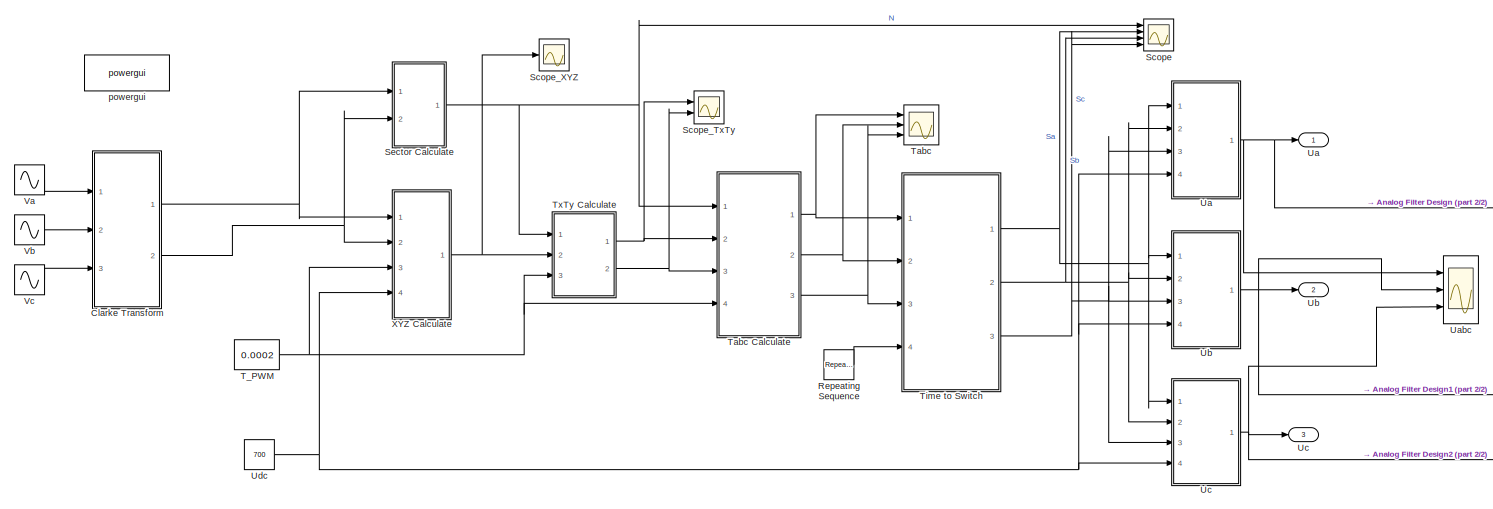
[diagram: root canvas - part 1/2, most of the canvas]
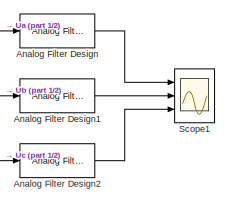
[diagram: root canvas - part 2/2, bottom right region]
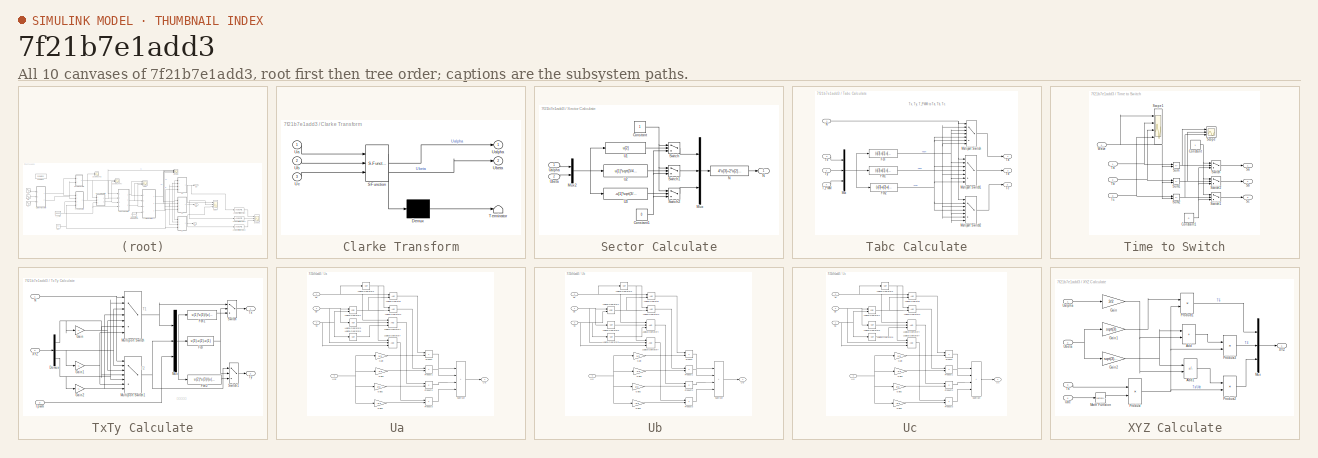
[diagram: thumbnail index - all 10 canvases of the model, root first then tree order]
MODEL slx_7f21b7e1add3
KIND model
CONFIG AbsTol = auto
CONFIG EnableMultiTasking = on
CONFIG FixedStep = 10e-6
CONFIG InitFcn = f = 50;
CONFIG MaxStep = 0.00001
CONFIG MinStep = auto
CONFIG RelTol = 1e-3
CONFIG SampleTimeConstraint = Unconstrained
CONFIG Solver = VariableStepAuto
CONFIG SolverName = VariableStepAuto
CONFIG StartTime = 0.0
CONFIG StopTime = 0.05
BLOCK [Reference] Analog Filter Design  REF=dsparch4/Analog
Filter Design
  Ports = [1, 1]
  SourceBlock = dsparch4/Analog\nFilter Design
  SourceProductBaseCode = DS
  SourceType = Analog Filter Design
BLOCK [Reference] Analog Filter Design1  REF=dsparch4/Analog
Filter Design
  Ports = [1, 1]
  SourceBlock = dsparch4/Analog\nFilter Design
  SourceProductBaseCode = DS
  SourceType = Analog Filter Design
BLOCK [Reference] Analog Filter Design2  REF=dsparch4/Analog
Filter Design
  Ports = [1, 1]
  SourceBlock = dsparch4/Analog\nFilter Design
  SourceProductBaseCode = DS
  SourceType = Analog Filter Design
BLOCK [SubSystem] Clarke Transform
  ErrorFcn = Stateflow.Translate.translate
  PermitHierarchicalResolution = ExplicitOnly
  Ports = [3, 2]
  RequestExecContextInheritance = off
  SFBlockType = MATLAB Function
  TreatAsAtomicUnit = on
BLOCK [Demux] Clarke Transform/ Demux 
  Outputs = 1
  Ports = [1, 1]
BLOCK [S-Function] Clarke Transform/ SFunction 
  EnableBusSupport = on
  FunctionName = sf_sfun
  PortCounts = [3 3]
  Ports = [3, 3]
  SFcnIsStateOwnerBlock = off
  SFunctionDeploymentMode = off
  Tag = Stateflow S-Function 2
BLOCK [Terminator] Clarke Transform/ Terminator 
BLOCK [Inport] Clarke Transform/Ua
BLOCK [Outport] Clarke Transform/Ualpha
BLOCK [Inport] Clarke Transform/Ub
  Port = 2
BLOCK [Outport] Clarke Transform/Ubeta
  Port = 2
BLOCK [Inport] Clarke Transform/Uc
  Port = 3
BLOCK [Reference] Repeating Sequence  REF=simulink/Sources/Repeating
Sequence
  Ports = [0, 1]
  SourceBlock = simulink/Sources/Repeating\nSequence
  SourceProductBaseCode = SL
  SourceType = Repeating table
BLOCK [Scope] Scope
  Floating = off
  NumInputPorts = 4
  Ports = [4]
  ScopeSpecificationString = Simulink.scopes.TimeScopeBlockCfg('CurrentConfiguration', extmgr.ConfigurationSet(extmgr.Configuration('Core','General UI',true,'FigureColor',[1 1 1]),extmgr.Configuration('Core','Source UI',true),extmgr.Configuration('Sources','WiredSimulink',true),extmgr.Configuration('Visuals','Time Domain',true,'SerializedDisplays',{struct('MinYLimReal','0.375','MaxYLimReal','6.625','YLabelReal','','MinYLimMag...<+3893ch>
BLOCK [Scope] Scope1
  Floating = off
  NumInputPorts = 3
  Ports = [3]
  ScopeSpecificationString = Simulink.scopes.TimeScopeBlockCfg('CurrentConfiguration', extmgr.ConfigurationSet(extmgr.Configuration('Core','General UI',true,'FigureColor',[1 1 1]),extmgr.Configuration('Core','Source UI',true),extmgr.Configuration('Sources','WiredSimulink',true,'DataLoggingVariableName','ScopeData2'),extmgr.Configuration('Visuals','Time Domain',true,'SerializedDisplays',{struct('MinYLimReal','-268.98338','MaxY...<+1555ch>
BLOCK [Scope] Scope_TxTy
  Floating = off
  NumInputPorts = 2
  Ports = [2]
  ScopeSpecificationString = Simulink.scopes.TimeScopeBlockCfg('CurrentConfiguration', extmgr.ConfigurationSet(extmgr.Configuration('Core','General UI',true),extmgr.Configuration('Core','Source UI',true),extmgr.Configuration('Sources','WiredSimulink',true,'DataLoggingVariableName','ScopeData6'),extmgr.Configuration('Visuals','Time Domain',true,'SerializedDisplays',{struct('MinYLimReal','-0.00001','MaxYLimReal','0.0001','YLabe...<+1467ch>
BLOCK [Scope] Scope_XYZ
  Floating = off
  NumInputPorts = 1
  Ports = [1]
  ScopeSpecificationString = Simulink.scopes.TimeScopeBlockCfg('CurrentConfiguration', extmgr.ConfigurationSet(extmgr.Configuration('Core','General UI',true),extmgr.Configuration('Core','Source UI',true),extmgr.Configuration('Sources','WiredSimulink',true,'DataLoggingVariableName','ScopeData5'),extmgr.Configuration('Visuals','Time Domain',true,'SerializedDisplays',{struct('MinYLimReal','-0.00012','MaxYLimReal','0.00012','YLab...<+1438ch>
BLOCK [SubSystem] Sector Calculate
  Ports = [2, 1]
  RequestExecContextInheritance = off
BLOCK [Constant] Sector Calculate/Constant
BLOCK [Constant] Sector Calculate/Constant1
  Value = 0
BLOCK [Mux] Sector Calculate/Mux
  DisplayOption = bar
  Inputs = 3
  Ports = [3, 1]
BLOCK [Mux] Sector Calculate/Mux2
  DisplayOption = bar
  Inputs = 2
  Ports = [2, 1]
BLOCK [Fcn] Sector Calculate/N
  Expr = 4*u[3]+2*u[2]+u[1]
BLOCK [Outport] Sector Calculate/N 
  VectorParamsAs1DForOutWhenUnconnected = off
BLOCK [Switch] Sector Calculate/Switch
  InputSameDT = off
  SaturateOnIntegerOverflow = off
BLOCK [Switch] Sector Calculate/Switch1
  InputSameDT = off
  SaturateOnIntegerOverflow = off
BLOCK [Switch] Sector Calculate/Switch2
  InputSameDT = off
  SaturateOnIntegerOverflow = off
BLOCK [Fcn] Sector Calculate/U1
  Expr = u[2]
BLOCK [Fcn] Sector Calculate/U2
  Expr = u[1]*sqrt(3/4)-0.5*u[2]
BLOCK [Fcn] Sector Calculate/U3
  Expr = -u[1]*sqrt(3/4)-u[2]*0.5
BLOCK [Inport] Sector Calculate/Ualpha
BLOCK [Inport] Sector Calculate/Ubeta
  Port = 2
BLOCK [Constant] T_PWM
  Value = 0.0002
BLOCK [Scope] Tabc
  Floating = off
  NumInputPorts = 3
  Ports = [3]
  ScopeSpecificationString = Simulink.scopes.TimeScopeBlockCfg('CurrentConfiguration', extmgr.ConfigurationSet(extmgr.Configuration('Core','General UI',true,'FigureColor',[1 1 1]),extmgr.Configuration('Core','Source UI',true),extmgr.Configuration('Sources','WiredSimulink',true,'DataLogging',true,'DataLoggingVariableName','Tcm','DataLoggingSaveFormat','StructureWithTime','SampleTime','0','DataLoggingDecimation','1','DataLoggin...<+1836ch>
BLOCK [SubSystem] Tabc Calculate
  Ports = [4, 3]
  RequestExecContextInheritance = off
BLOCK [Fcn] Tabc Calculate/Fcn
  Expr = (u[3]-u[1]-u[2])/4
BLOCK [Fcn] Tabc Calculate/Fcn1
  Expr = (u[3]+u[1]-u[2])/4
BLOCK [Fcn] Tabc Calculate/Fcn2
  Expr = (u[3]+u[2]+u[1])/4
BLOCK [MultiPortSwitch] Tabc Calculate/Multiport Switch
  InputSameDT = off
  Inputs = 6
  Ports = [7, 1]
  SaturateOnIntegerOverflow = off
BLOCK [MultiPortSwitch] Tabc Calculate/Multiport Switch1
  InputSameDT = off
  Inputs = 6
  Ports = [7, 1]
  SaturateOnIntegerOverflow = off
BLOCK [MultiPortSwitch] Tabc Calculate/Multiport Switch2
  InputSameDT = off
  Inputs = 6
  Ports = [7, 1]
  SaturateOnIntegerOverflow = off
BLOCK [Mux] Tabc Calculate/Mux
  DisplayOption = bar
  Inputs = 3
  Ports = [3, 1]
BLOCK [Inport] Tabc Calculate/N
BLOCK [Inport] Tabc Calculate/T_PWM
  Port = 4
BLOCK [Outport] Tabc Calculate/Ta
BLOCK [Outport] Tabc Calculate/Tb
  Port = 2
BLOCK [Outport] Tabc Calculate/Tc
  Port = 3
BLOCK [Inport] Tabc Calculate/Tx
  Port = 2
BLOCK [Inport] Tabc Calculate/Ty
  Port = 3
BLOCK [SubSystem] Time to Switch
  Ports = [4, 3]
  RequestExecContextInheritance = off
BLOCK [Constant] Time to Switch/Constant
BLOCK [Constant] Time to Switch/Constant1
  Value = 0
BLOCK [Outport] Time to Switch/Sa
  VectorParamsAs1DForOutWhenUnconnected = off
BLOCK [Outport] Time to Switch/Sb
  Port = 2
  VectorParamsAs1DForOutWhenUnconnected = off
BLOCK [Outport] Time to Switch/Sc
  Port = 3
  VectorParamsAs1DForOutWhenUnconnected = off
BLOCK [Scope] Time to Switch/Scope
  Floating = off
  NumInputPorts = 3
  Ports = [3]
  ScopeSpecificationString = Simulink.scopes.TimeScopeBlockCfg('CurrentConfiguration', extmgr.ConfigurationSet(extmgr.Configuration('Core','General UI',true),extmgr.Configuration('Core','Source UI',true),extmgr.Configuration('Sources','WiredSimulink',true,'DataLoggingVariableName','ScopeData3'),extmgr.Configuration('Visuals','Time Domain',true,'SerializedDisplays',{struct('MinYLimReal','-0.00009','MaxYLimReal','0.00009','YLab...<+1503ch>
BLOCK [Scope] Time to Switch/Scope1
  Floating = off
  NumInputPorts = 4
  Ports = [4]
  ScopeSpecificationString = Simulink.scopes.TimeScopeBlockCfg('CurrentConfiguration', extmgr.ConfigurationSet(extmgr.Configuration('Core','General UI',true),extmgr.Configuration('Core','Source UI',true),extmgr.Configuration('Sources','WiredSimulink',true,'DataLoggingVariableName','ScopeData4'),extmgr.Configuration('Visuals','Time Domain',true,'SerializedDisplays',{struct('MinYLimReal','-0.00001','MaxYLimReal','0.00011','YLab...<+1505ch>
BLOCK [Sum] Time to Switch/Sum
  IconShape = rectangular
  Inputs = -+
  Ports = [2, 1]
BLOCK [Sum] Time to Switch/Sum1
  IconShape = rectangular
  Inputs = -+
  Ports = [2, 1]
BLOCK [Sum] Time to Switch/Sum2
  IconShape = rectangular
  Inputs = -+
  Ports = [2, 1]
BLOCK [Switch] Time to Switch/Switch
  InputSameDT = off
BLOCK [Switch] Time to Switch/Switch1
  InputSameDT = off
BLOCK [Switch] Time to Switch/Switch2
  InputSameDT = off
BLOCK [Inport] Time to Switch/Ta
BLOCK [Inport] Time to Switch/Tb
  Port = 2
BLOCK [Inport] Time to Switch/Tc
  Port = 3
BLOCK [Inport] Time to Switch/Wave
  Port = 4
BLOCK [SubSystem] TxTy Calculate
  Ports = [3, 2]
  RequestExecContextInheritance = off
BLOCK [Demux] TxTy Calculate/Demux
  Outputs = 3
  Ports = [1, 3]
BLOCK [Fcn] TxTy Calculate/Fcn
  Expr = u(3)-u(2)-u(1)
BLOCK [Fcn] TxTy Calculate/Fcn1
  Expr = u(1)*u(3)/(u(1)+u(2))
BLOCK [Fcn] TxTy Calculate/Fcn2
  Expr = u(2)*u(3)/(u(1)+u(2))
BLOCK [Gain] TxTy Calculate/Gain
  Gain = -1
BLOCK [Gain] TxTy Calculate/Gain1
  Gain = -1
BLOCK [Gain] TxTy Calculate/Gain2
  Gain = -1
BLOCK [MultiPortSwitch] TxTy Calculate/Multiport Switch
  InputSameDT = off
  Inputs = 6
  Ports = [7, 1]
  SaturateOnIntegerOverflow = off
BLOCK [MultiPortSwitch] TxTy Calculate/Multiport Switch1
  InputSameDT = off
  Inputs = 6
  Ports = [7, 1]
  SaturateOnIntegerOverflow = off
BLOCK [Mux] TxTy Calculate/Mux
  DisplayOption = bar
  Inputs = 3
  Ports = [3, 1]
BLOCK [Inport] TxTy Calculate/N
BLOCK [Switch] TxTy Calculate/Switch
  InputSameDT = off
  SaturateOnIntegerOverflow = off
BLOCK [Switch] TxTy Calculate/Switch1
  Criteria = u2 > Threshold
  InputSameDT = off
  SaturateOnIntegerOverflow = off
BLOCK [Inport] TxTy Calculate/Tpwm
  Port = 3
BLOCK [Outport] TxTy Calculate/Tx
  VectorParamsAs1DForOutWhenUnconnected = off
BLOCK [Outport] TxTy Calculate/Ty
  Port = 2
  VectorParamsAs1DForOutWhenUnconnected = off
BLOCK [Inport] TxTy Calculate/XYZ
  Port = 2
BLOCK [Outport] Ua
  VectorParamsAs1DForOutWhenUnconnected = off
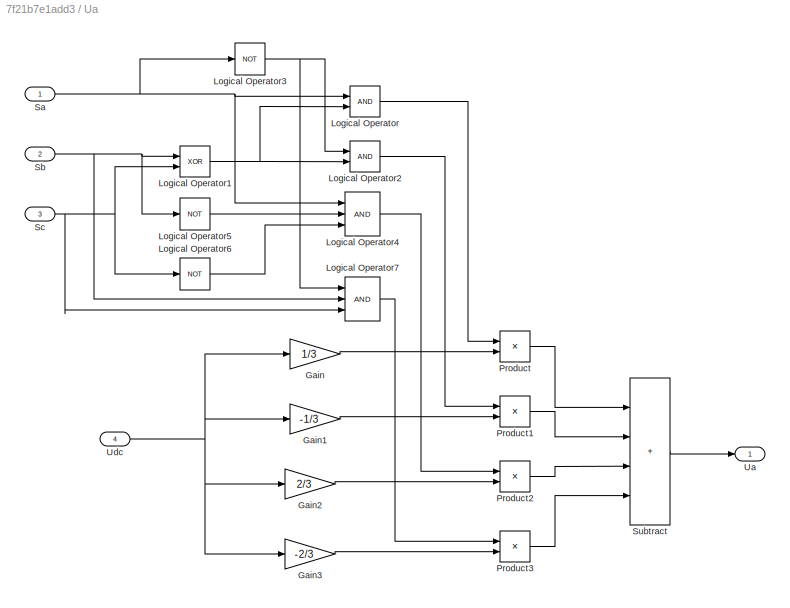
BLOCK [SubSystem] Ua 
  Ports = [4, 1]
  RequestExecContextInheritance = off
BLOCK [Gain] Ua /Gain
  Gain = 1/3
BLOCK [Gain] Ua /Gain1
  Gain = -1/3
BLOCK [Gain] Ua /Gain2
  Gain = 2/3
BLOCK [Gain] Ua /Gain3
  Gain = -2/3
BLOCK [Logic] Ua /Logical Operator
  AllPortsSameDT = off
  OutDataTypeStr = boolean
  Ports = [2, 1]
BLOCK [Logic] Ua /Logical Operator1
  AllPortsSameDT = off
  Operator = XOR
  OutDataTypeStr = boolean
  Ports = [2, 1]
BLOCK [Logic] Ua /Logical Operator2
  AllPortsSameDT = off
  OutDataTypeStr = boolean
  Ports = [2, 1]
BLOCK [Logic] Ua /Logical Operator3
  AllPortsSameDT = off
  Operator = NOT
  OutDataTypeStr = boolean
  Ports = [1, 1]
BLOCK [Logic] Ua /Logical Operator4
  AllPortsSameDT = off
  Inputs = 3
  OutDataTypeStr = boolean
  Ports = [3, 1]
BLOCK [Logic] Ua /Logical Operator5
  AllPortsSameDT = off
  Operator = NOT
  OutDataTypeStr = boolean
  Ports = [1, 1]
BLOCK [Logic] Ua /Logical Operator6
  AllPortsSameDT = off
  Operator = NOT
  OutDataTypeStr = boolean
  Ports = [1, 1]
BLOCK [Logic] Ua /Logical Operator7
  AllPortsSameDT = off
  Inputs = 3
  OutDataTypeStr = boolean
  Ports = [3, 1]
BLOCK [Product] Ua /Product
  Ports = [2, 1]
  RndMeth = Zero
BLOCK [Product] Ua /Product1
  Ports = [2, 1]
  RndMeth = Zero
BLOCK [Product] Ua /Product2
  Ports = [2, 1]
  RndMeth = Zero
BLOCK [Product] Ua /Product3
  Ports = [2, 1]
  RndMeth = Zero
BLOCK [Inport] Ua /Sa
BLOCK [Inport] Ua /Sb
  Port = 2
BLOCK [Inport] Ua /Sc
  Port = 3
BLOCK [Sum] Ua /Subtract
  IconShape = rectangular
  Inputs = ++++
  Ports = [4, 1]
BLOCK [Outport] Ua /Ua
  VectorParamsAs1DForOutWhenUnconnected = off
BLOCK [Inport] Ua /Udc
  Port = 4
BLOCK [Scope] Uabc
  Floating = off
  NumInputPorts = 3
  Ports = [3]
  ScopeSpecificationString = Simulink.scopes.TimeScopeBlockCfg('CurrentConfiguration', extmgr.ConfigurationSet(extmgr.Configuration('Core','General UI',true,'FigureColor',[1 1 1]),extmgr.Configuration('Core','Source UI',true),extmgr.Configuration('Sources','WiredSimulink',true,'DataLoggingVariableName','ScopeData7','DataLoggingSaveFormat','Structure','DataLoggingDecimation','1','DataLoggingDecimateData',true),extmgr.Configura...<+3272ch>
BLOCK [Outport] Ub
  Port = 2
  VectorParamsAs1DForOutWhenUnconnected = off
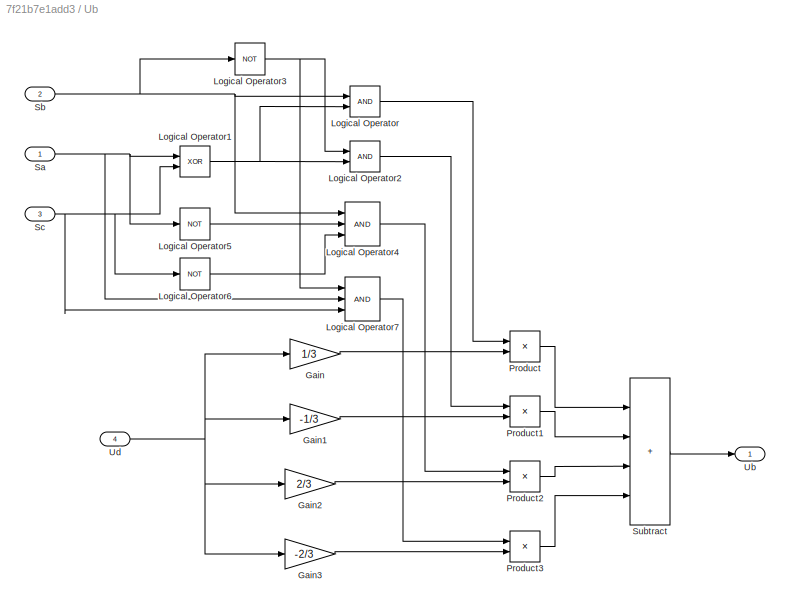
BLOCK [SubSystem] Ub 
  Ports = [4, 1]
  RequestExecContextInheritance = off
BLOCK [Gain] Ub /Gain
  Gain = 1/3
BLOCK [Gain] Ub /Gain1
  Gain = -1/3
BLOCK [Gain] Ub /Gain2
  Gain = 2/3
BLOCK [Gain] Ub /Gain3
  Gain = -2/3
BLOCK [Logic] Ub /Logical Operator
  AllPortsSameDT = off
  OutDataTypeStr = boolean
  Ports = [2, 1]
BLOCK [Logic] Ub /Logical Operator1
  AllPortsSameDT = off
  Operator = XOR
  OutDataTypeStr = boolean
  Ports = [2, 1]
BLOCK [Logic] Ub /Logical Operator2
  AllPortsSameDT = off
  OutDataTypeStr = boolean
  Ports = [2, 1]
BLOCK [Logic] Ub /Logical Operator3
  AllPortsSameDT = off
  Operator = NOT
  OutDataTypeStr = boolean
  Ports = [1, 1]
BLOCK [Logic] Ub /Logical Operator4
  AllPortsSameDT = off
  Inputs = 3
  OutDataTypeStr = boolean
  Ports = [3, 1]
BLOCK [Logic] Ub /Logical Operator5
  AllPortsSameDT = off
  Operator = NOT
  OutDataTypeStr = boolean
  Ports = [1, 1]
BLOCK [Logic] Ub /Logical Operator6
  AllPortsSameDT = off
  Operator = NOT
  OutDataTypeStr = boolean
  Ports = [1, 1]
BLOCK [Logic] Ub /Logical Operator7
  AllPortsSameDT = off
  Inputs = 3
  OutDataTypeStr = boolean
  Ports = [3, 1]
BLOCK [Product] Ub /Product
  Ports = [2, 1]
  RndMeth = Zero
BLOCK [Product] Ub /Product1
  Ports = [2, 1]
  RndMeth = Zero
BLOCK [Product] Ub /Product2
  Ports = [2, 1]
  RndMeth = Zero
BLOCK [Product] Ub /Product3
  Ports = [2, 1]
  RndMeth = Zero
BLOCK [Inport] Ub /Sa
BLOCK [Inport] Ub /Sb
  Port = 2
BLOCK [Inport] Ub /Sc
  Port = 3
BLOCK [Sum] Ub /Subtract
  IconShape = rectangular
  Inputs = ++++
  Ports = [4, 1]
BLOCK [Outport] Ub /Ub
  VectorParamsAs1DForOutWhenUnconnected = off
BLOCK [Inport] Ub /Ud
  Port = 4
BLOCK [Outport] Uc
  Port = 3
  VectorParamsAs1DForOutWhenUnconnected = off
BLOCK [SubSystem] Uc  
  Ports = [4, 1]
  RequestExecContextInheritance = off
BLOCK [Gain] Uc  /Gain
  Gain = 1/3
BLOCK [Gain] Uc  /Gain1
  Gain = -1/3
BLOCK [Gain] Uc  /Gain2
  Gain = 2/3
BLOCK [Gain] Uc  /Gain3
  Gain = -2/3
BLOCK [Logic] Uc  /Logical Operator
  AllPortsSameDT = off
  OutDataTypeStr = boolean
  Ports = [2, 1]
BLOCK [Logic] Uc  /Logical Operator1
  AllPortsSameDT = off
  Operator = XOR
  OutDataTypeStr = boolean
  Ports = [2, 1]
BLOCK [Logic] Uc  /Logical Operator2
  AllPortsSameDT = off
  OutDataTypeStr = boolean
  Ports = [2, 1]
BLOCK [Logic] Uc  /Logical Operator3
  AllPortsSameDT = off
  Operator = NOT
  OutDataTypeStr = boolean
  Ports = [1, 1]
BLOCK [Logic] Uc  /Logical Operator4
  AllPortsSameDT = off
  Inputs = 3
  OutDataTypeStr = boolean
  Ports = [3, 1]
BLOCK [Logic] Uc  /Logical Operator5
  AllPortsSameDT = off
  Operator = NOT
  OutDataTypeStr = boolean
  Ports = [1, 1]
BLOCK [Logic] Uc  /Logical Operator6
  AllPortsSameDT = off
  Operator = NOT
  OutDataTypeStr = boolean
  Ports = [1, 1]
BLOCK [Logic] Uc  /Logical Operator7
  AllPortsSameDT = off
  Inputs = 3
  OutDataTypeStr = boolean
  Ports = [3, 1]
BLOCK [Product] Uc  /Product
  Ports = [2, 1]
  RndMeth = Zero
BLOCK [Product] Uc  /Product1
  Ports = [2, 1]
  RndMeth = Zero
BLOCK [Product] Uc  /Product2
  Ports = [2, 1]
  RndMeth = Zero
BLOCK [Product] Uc  /Product3
  Ports = [2, 1]
  RndMeth = Zero
BLOCK [Inport] Uc  /Sa 
BLOCK [Inport] Uc  /Sb
  Port = 2
BLOCK [Inport] Uc  /Sc
  Port = 3
BLOCK [Sum] Uc  /Subtract
  IconShape = rectangular
  Inputs = ++++
  Ports = [4, 1]
BLOCK [Outport] Uc  /Uc
  VectorParamsAs1DForOutWhenUnconnected = off
BLOCK [Inport] Uc  /Ud
  Port = 4
BLOCK [Constant] Udc
  Value = 700
BLOCK [Sin] Va
  Amplitude = 200
  Frequency = 2*pi*f
  Ports = [0, 1]
  SampleTime = 0
BLOCK [Sin] Vb
  Amplitude = 200
  Frequency = 2*pi*f
  Phase = -2*pi/3
  Ports = [0, 1]
  SampleTime = 0
BLOCK [Sin] Vc
  Amplitude = 200
  Frequency = 2*pi*f
  Phase = -4*pi/3
  Ports = [0, 1]
  SampleTime = 0
BLOCK [SubSystem] XYZ Calculate
  Ports = [4, 1]
  RequestExecContextInheritance = off
BLOCK [Sum] XYZ Calculate/Add
  IconShape = rectangular
  Ports = [2, 1]
BLOCK [Sum] XYZ Calculate/Add1
  IconShape = rectangular
  Inputs = +-
  Ports = [2, 1]
BLOCK [Gain] XYZ Calculate/Gain
  Gain = 3/2
BLOCK [Gain] XYZ Calculate/Gain1
  Gain = sqrt(3)
BLOCK [Gain] XYZ Calculate/Gain2
  Gain = sqrt(3)/2
BLOCK [Math] XYZ Calculate/Math Function
  Operator = reciprocal
  Ports = [1, 1]
  SignedPower = on
BLOCK [Mux] XYZ Calculate/Mux
  DisplayOption = bar
  Inputs = 3
  Ports = [3, 1]
BLOCK [Product] XYZ Calculate/Product
  Ports = [2, 1]
  RndMeth = Zero
BLOCK [Product] XYZ Calculate/Product1
  Ports = [2, 1]
  RndMeth = Zero
BLOCK [Product] XYZ Calculate/Product2
  Ports = [2, 1]
  RndMeth = Zero
BLOCK [Product] XYZ Calculate/Product3
  Ports = [2, 1]
  RndMeth = Zero
BLOCK [Inport] XYZ Calculate/Ts
  Port = 3
BLOCK [Inport] XYZ Calculate/Ualpha
BLOCK [Inport] XYZ Calculate/Ubeta
  Port = 2
BLOCK [Inport] XYZ Calculate/Udc
  Port = 4
BLOCK [Outport] XYZ Calculate/XYZ
  VectorParamsAs1DForOutWhenUnconnected = off
BLOCK [Reference] powergui  REF=powerlib/powergui
  Ports = []
  Priority = 1
  SourceBlock = powerlib/powergui
  SourceProductBaseCode = PS
  SourceType = PSB option menu block
ANNOTATION Tabc Calculate: Tx, Ty, T_PWM to Ta, Tb, Tc.
ANNOTATION TxTy Calculate: 过调制处理
ANNOTATION TxTy Calculate: T1
ANNOTATION TxTy Calculate: T2
LINE Analog Filter Design1:1 -> Scope1:2
LINE Analog Filter Design2:1 -> Scope1:3
LINE Analog Filter Design:1 -> Scope1:1
NET Clarke Transform:1 -> Sector Calculate:1, XYZ Calculate:1
NET Clarke Transform:2 -> Sector Calculate:2, XYZ Calculate:2
LINE Repeating Sequence:1 -> Time to Switch:4
NET Sector Calculate/Constant1:1 -> Sector Calculate/Switch1:3, Sector Calculate/Switch2:3, Sector Calculate/Switch:3
NET Sector Calculate/Constant:1 -> Sector Calculate/Switch1:1, Sector Calculate/Switch2:1, Sector Calculate/Switch:1
NET Sector Calculate/Mux2:1 -> Sector Calculate/U1:1, Sector Calculate/U2:1, Sector Calculate/U3:1
LINE Sector Calculate/Mux:1 -> Sector Calculate/N:1
LINE Sector Calculate/N:1 -> Sector Calculate/N :1
LINE Sector Calculate/Switch1:1 -> Sector Calculate/Mux:2
LINE Sector Calculate/Switch2:1 -> Sector Calculate/Mux:3
LINE Sector Calculate/Switch:1 -> Sector Calculate/Mux:1
LINE Sector Calculate/U1:1 -> Sector Calculate/Switch:2
LINE Sector Calculate/U2:1 -> Sector Calculate/Switch1:2
LINE Sector Calculate/U3:1 -> Sector Calculate/Switch2:2
LINE Sector Calculate/Ualpha:1 -> Sector Calculate/Mux2:1
LINE Sector Calculate/Ubeta:1 -> Sector Calculate/Mux2:2
NET Sector Calculate:1 -> Scope:1, Tabc Calculate:1, TxTy Calculate:1
NET T_PWM:1 -> Tabc Calculate:4, TxTy Calculate:3, XYZ Calculate:3
NET Tabc Calculate/Fcn1:1 -> Tabc Calculate/Multiport Switch1:4, Tabc Calculate/Multiport Switch1:5, Tabc Calculate/Multiport Switch2:3, Tabc Calculate/Multiport Switch2:6, Tabc Calculate/Multiport Switch:2, Tabc Calculate/Multiport Switch:7
NET Tabc Calculate/Fcn2:1 -> Tabc Calculate/Multiport Switch1:3, Tabc Calculate/Multiport Switch1:7, Tabc Calculate/Multiport Switch2:2, Tabc Calculate/Multiport Switch2:4, Tabc Calculate/Multiport Switch:5, Tabc Calculate/Multiport Switch:6
NET Tabc Calculate/Fcn:1 -> Tabc Calculate/Multiport Switch1:2, Tabc Calculate/Multiport Switch1:6, Tabc Calculate/Multiport Switch2:5, Tabc Calculate/Multiport Switch2:7, Tabc Calculate/Multiport Switch:3, Tabc Calculate/Multiport Switch:4
LINE Tabc Calculate/Multiport Switch1:1 -> Tabc Calculate/Tb:1
LINE Tabc Calculate/Multiport Switch2:1 -> Tabc Calculate/Tc:1
LINE Tabc Calculate/Multiport Switch:1 -> Tabc Calculate/Ta:1
NET Tabc Calculate/Mux:1 -> Tabc Calculate/Fcn1:1, Tabc Calculate/Fcn2:1, Tabc Calculate/Fcn:1
NET Tabc Calculate/N:1 -> Tabc Calculate/Multiport Switch1:1, Tabc Calculate/Multiport Switch2:1, Tabc Calculate/Multiport Switch:1
LINE Tabc Calculate/T_PWM:1 -> Tabc Calculate/Mux:3
LINE Tabc Calculate/Tx:1 -> Tabc Calculate/Mux:1
LINE Tabc Calculate/Ty:1 -> Tabc Calculate/Mux:2
NET Tabc Calculate:1 -> Tabc:1, Time to Switch:1
NET Tabc Calculate:2 -> Tabc:2, Time to Switch:2
NET Tabc Calculate:3 -> Tabc:3, Time to Switch:3
NET Time to Switch/Constant1:1 -> Time to Switch/Switch1:3, Time to Switch/Switch2:3, Time to Switch/Switch:3
NET Time to Switch/Constant:1 -> Time to Switch/Switch1:1, Time to Switch/Switch2:1, Time to Switch/Switch:1
NET Time to Switch/Sum1:1 -> Time to Switch/Scope:2, Time to Switch/Switch2:2
NET Time to Switch/Sum2:1 -> Time to Switch/Scope:3, Time to Switch/Switch1:2
NET Time to Switch/Sum:1 -> Time to Switch/Scope:1, Time to Switch/Switch:2
LINE Time to Switch/Switch1:1 -> Time to Switch/Sc:1
LINE Time to Switch/Switch2:1 -> Time to Switch/Sb:1
LINE Time to Switch/Switch:1 -> Time to Switch/Sa:1
NET Time to Switch/Ta:1 -> Time to Switch/Scope1:2, Time to Switch/Sum:1
NET Time to Switch/Tb:1 -> Time to Switch/Scope1:3, Time to Switch/Sum1:1
NET Time to Switch/Tc:1 -> Time to Switch/Scope1:4, Time to Switch/Sum2:1
NET Time to Switch/Wave:1 -> Time to Switch/Scope1:1, Time to Switch/Sum1:2, Time to Switch/Sum2:2, Time to Switch/Sum:2
NET Time to Switch:1 -> Scope:2, Ua :1, Ub :1, Uc  :1
NET Time to Switch:2 -> Scope:3, Ua :2, Ub :2, Uc  :2
NET Time to Switch:3 -> Scope:4, Ua :3, Ub :3, Uc  :3
NET TxTy Calculate/Demux:1 -> TxTy Calculate/Gain:1, TxTy Calculate/Multiport Switch1:4, TxTy Calculate/Multiport Switch:6
NET TxTy Calculate/Demux:2 -> TxTy Calculate/Gain1:1, TxTy Calculate/Multiport Switch1:2, TxTy Calculate/Multiport Switch:3
NET TxTy Calculate/Demux:3 -> TxTy Calculate/Gain2:1, TxTy Calculate/Multiport Switch1:5, TxTy Calculate/Multiport Switch:2
LINE TxTy Calculate/Fcn1:1 -> TxTy Calculate/Switch:3
LINE TxTy Calculate/Fcn2:1 -> TxTy Calculate/Switch1:3
NET TxTy Calculate/Fcn:1 -> TxTy Calculate/Switch1:2, TxTy Calculate/Switch:2
NET TxTy Calculate/Gain1:1 -> TxTy Calculate/Multiport Switch1:6, TxTy Calculate/Multiport Switch:7
NET TxTy Calculate/Gain2:1 -> TxTy Calculate/Multiport Switch1:7, TxTy Calculate/Multiport Switch:4
NET TxTy Calculate/Gain:1 -> TxTy Calculate/Multiport Switch1:3, TxTy Calculate/Multiport Switch:5
NET TxTy Calculate/Multiport Switch1:1 -> TxTy Calculate/Mux:2, TxTy Calculate/Switch1:1
NET TxTy Calculate/Multiport Switch:1 -> TxTy Calculate/Mux:1, TxTy Calculate/Switch:1
NET TxTy Calculate/Mux:1 -> TxTy Calculate/Fcn1:1, TxTy Calculate/Fcn2:1, TxTy Calculate/Fcn:1
NET TxTy Calculate/N:1 -> TxTy Calculate/Multiport Switch1:1, TxTy Calculate/Multiport Switch:1
LINE TxTy Calculate/Switch1:1 -> TxTy Calculate/Ty:1
LINE TxTy Calculate/Switch:1 -> TxTy Calculate/Tx:1
LINE TxTy Calculate/Tpwm:1 -> TxTy Calculate/Mux:3
LINE TxTy Calculate/XYZ:1 -> TxTy Calculate/Demux:1
NET TxTy Calculate:1 -> Scope_TxTy:1, Tabc Calculate:2
NET TxTy Calculate:2 -> Scope_TxTy:2, Tabc Calculate:3
LINE Ua /Gain1:1 -> Ua /Product1:2
LINE Ua /Gain2:1 -> Ua /Product2:2
LINE Ua /Gain3:1 -> Ua /Product3:2
LINE Ua /Gain:1 -> Ua /Product:2
NET Ua /Logical Operator1:1 -> Ua /Logical Operator2:2, Ua /Logical Operator:2
LINE Ua /Logical Operator2:1 -> Ua /Product1:1
NET Ua /Logical Operator3:1 -> Ua /Logical Operator2:1, Ua /Logical Operator7:1
LINE Ua /Logical Operator4:1 -> Ua /Product2:1
LINE Ua /Logical Operator5:1 -> Ua /Logical Operator4:2
LINE Ua /Logical Operator6:1 -> Ua /Logical Operator4:3
LINE Ua /Logical Operator7:1 -> Ua /Product3:1
LINE Ua /Logical Operator:1 -> Ua /Product:1
LINE Ua /Product1:1 -> Ua /Subtract:2
LINE Ua /Product2:1 -> Ua /Subtract:3
LINE Ua /Product3:1 -> Ua /Subtract:4
LINE Ua /Product:1 -> Ua /Subtract:1
NET Ua /Sa:1 -> Ua /Logical Operator3:1, Ua /Logical Operator4:1, Ua /Logical Operator:1
NET Ua /Sb:1 -> Ua /Logical Operator1:1, Ua /Logical Operator5:1, Ua /Logical Operator7:2
NET Ua /Sc:1 -> Ua /Logical Operator1:2, Ua /Logical Operator6:1, Ua /Logical Operator7:3
LINE Ua /Subtract:1 -> Ua /Ua:1
NET Ua /Udc:1 -> Ua /Gain1:1, Ua /Gain2:1, Ua /Gain3:1, Ua /Gain:1
NET Ua :1 -> Analog Filter Design:1, Ua:1, Uabc:1
LINE Ub /Gain1:1 -> Ub /Product1:2
LINE Ub /Gain2:1 -> Ub /Product2:2
LINE Ub /Gain3:1 -> Ub /Product3:2
LINE Ub /Gain:1 -> Ub /Product:2
NET Ub /Logical Operator1:1 -> Ub /Logical Operator2:2, Ub /Logical Operator:2
LINE Ub /Logical Operator2:1 -> Ub /Product1:1
NET Ub /Logical Operator3:1 -> Ub /Logical Operator2:1, Ub /Logical Operator7:1
LINE Ub /Logical Operator4:1 -> Ub /Product2:1
LINE Ub /Logical Operator5:1 -> Ub /Logical Operator4:2
LINE Ub /Logical Operator6:1 -> Ub /Logical Operator4:3
LINE Ub /Logical Operator7:1 -> Ub /Product3:1
LINE Ub /Logical Operator:1 -> Ub /Product:1
LINE Ub /Product1:1 -> Ub /Subtract:2
LINE Ub /Product2:1 -> Ub /Subtract:3
LINE Ub /Product3:1 -> Ub /Subtract:4
LINE Ub /Product:1 -> Ub /Subtract:1
NET Ub /Sa:1 -> Ub /Logical Operator1:1, Ub /Logical Operator5:1, Ub /Logical Operator7:2
NET Ub /Sb:1 -> Ub /Logical Operator3:1, Ub /Logical Operator4:1, Ub /Logical Operator:1
NET Ub /Sc:1 -> Ub /Logical Operator1:2, Ub /Logical Operator6:1, Ub /Logical Operator7:3
LINE Ub /Subtract:1 -> Ub /Ub:1
NET Ub /Ud:1 -> Ub /Gain1:1, Ub /Gain2:1, Ub /Gain3:1, Ub /Gain:1
NET Ub :1 -> Analog Filter Design1:1, Uabc:2, Ub:1
LINE Uc  /Gain1:1 -> Uc  /Product1:2
LINE Uc  /Gain2:1 -> Uc  /Product2:2
LINE Uc  /Gain3:1 -> Uc  /Product3:2
LINE Uc  /Gain:1 -> Uc  /Product:2
NET Uc  /Logical Operator1:1 -> Uc  /Logical Operator2:2, Uc  /Logical Operator:2
LINE Uc  /Logical Operator2:1 -> Uc  /Product1:1
NET Uc  /Logical Operator3:1 -> Uc  /Logical Operator2:1, Uc  /Logical Operator7:1
LINE Uc  /Logical Operator4:1 -> Uc  /Product2:1
LINE Uc  /Logical Operator5:1 -> Uc  /Logical Operator4:2
LINE Uc  /Logical Operator6:1 -> Uc  /Logical Operator4:3
LINE Uc  /Logical Operator7:1 -> Uc  /Product3:1
LINE Uc  /Logical Operator:1 -> Uc  /Product:1
LINE Uc  /Product1:1 -> Uc  /Subtract:2
LINE Uc  /Product2:1 -> Uc  /Subtract:3
LINE Uc  /Product3:1 -> Uc  /Subtract:4
LINE Uc  /Product:1 -> Uc  /Subtract:1
NET Uc  /Sa :1 -> Uc  /Logical Operator1:2, Uc  /Logical Operator6:1, Uc  /Logical Operator7:3
NET Uc  /Sb:1 -> Uc  /Logical Operator1:1, Uc  /Logical Operator5:1, Uc  /Logical Operator7:2
NET Uc  /Sc:1 -> Uc  /Logical Operator3:1, Uc  /Logical Operator4:1, Uc  /Logical Operator:1
LINE Uc  /Subtract:1 -> Uc  /Uc:1
NET Uc  /Ud:1 -> Uc  /Gain1:1, Uc  /Gain2:1, Uc  /Gain3:1, Uc  /Gain:1
NET Uc  :1 -> Analog Filter Design2:1, Uabc:3, Uc:1
NET Udc:1 -> Ua :4, Ub :4, Uc  :4, XYZ Calculate:4
LINE Va:1 -> Clarke Transform:1
LINE Vb:1 -> Clarke Transform:2
LINE Vc:1 -> Clarke Transform:3
LINE XYZ Calculate/Add1:1 -> XYZ Calculate/Product2:1
LINE XYZ Calculate/Add:1 -> XYZ Calculate/Product3:1
LINE XYZ Calculate/Gain1:1 -> XYZ Calculate/Product1:1
NET XYZ Calculate/Gain2:1 -> XYZ Calculate/Add1:1, XYZ Calculate/Add:1
NET XYZ Calculate/Gain:1 -> XYZ Calculate/Add1:2, XYZ Calculate/Add:2
LINE XYZ Calculate/Math Function:1 -> XYZ Calculate/Product:2
LINE XYZ Calculate/Mux:1 -> XYZ Calculate/XYZ:1
LINE XYZ Calculate/Product1:1 -> XYZ Calculate/Mux:1
LINE XYZ Calculate/Product2:1 -> XYZ Calculate/Mux:3
LINE XYZ Calculate/Product3:1 -> XYZ Calculate/Mux:2
NET XYZ Calculate/Product:1 -> XYZ Calculate/Product1:2, XYZ Calculate/Product2:2, XYZ Calculate/Product3:2
LINE XYZ Calculate/Ts:1 -> XYZ Calculate/Product:1
LINE XYZ Calculate/Ualpha:1 -> XYZ Calculate/Gain:1
NET XYZ Calculate/Ubeta:1 -> XYZ Calculate/Gain1:1, XYZ Calculate/Gain2:1
LINE XYZ Calculate/Udc:1 -> XYZ Calculate/Math Function:1
NET XYZ Calculate:1 -> Scope_XYZ:1, TxTy Calculate:2
note: NET lines group one-source signal fan-out (src -> all destinations, sorted); 1:1 wires keep LINE
CHART Clarke Transform states=1 transitions=1
  STATE_LABEL 'eML_blk_kernel()'
  STATE_LABEL 'SCRIPT:\nfunction [Ualpha, Ubeta]= fcn(Ua, Ub, Uc)\n\n% m = 2/3\n\nU = 2/3 * [1 -0.5 -0.5; 0 sqrt(3)/2 -sqrt(3)/2] * [Ua; Ub; Uc];\nUalpha = U(1);\nUbeta = U(2);\n\nend\n'
CHART  states=0 transitions=0
